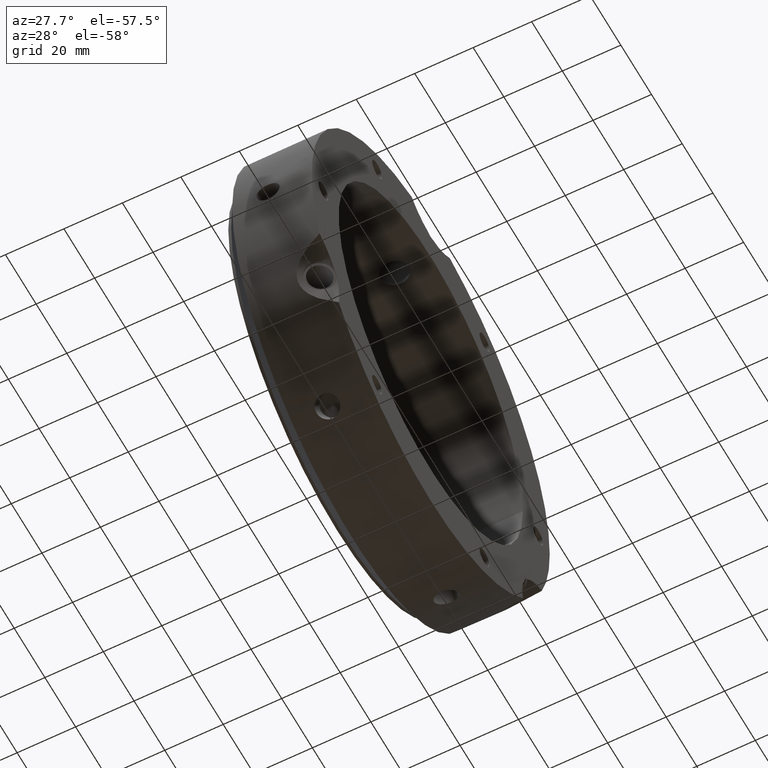
[diagram: clean part render]
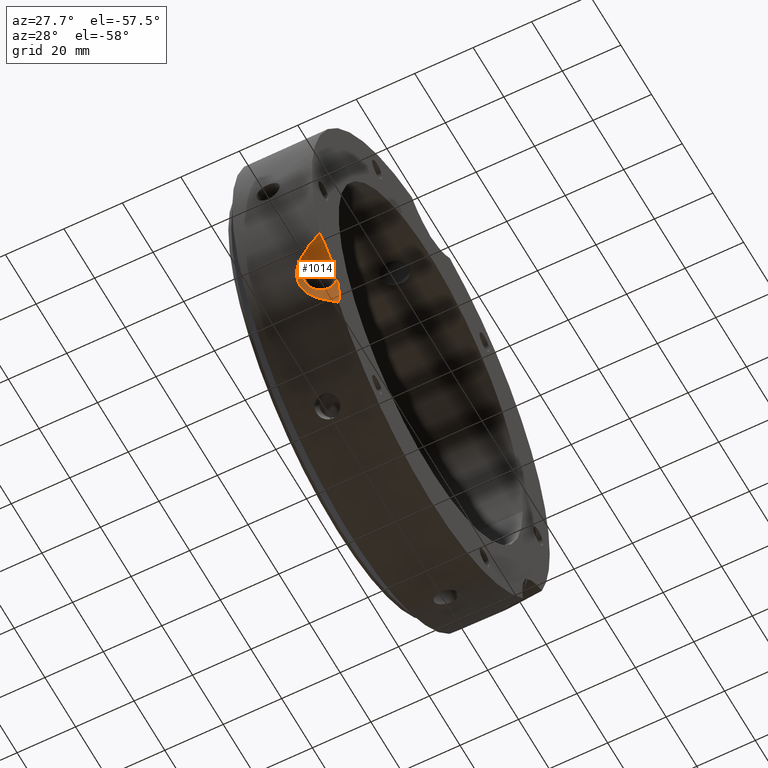
[diagram: same view with one face highlighted and labeled with its STEP entity id]
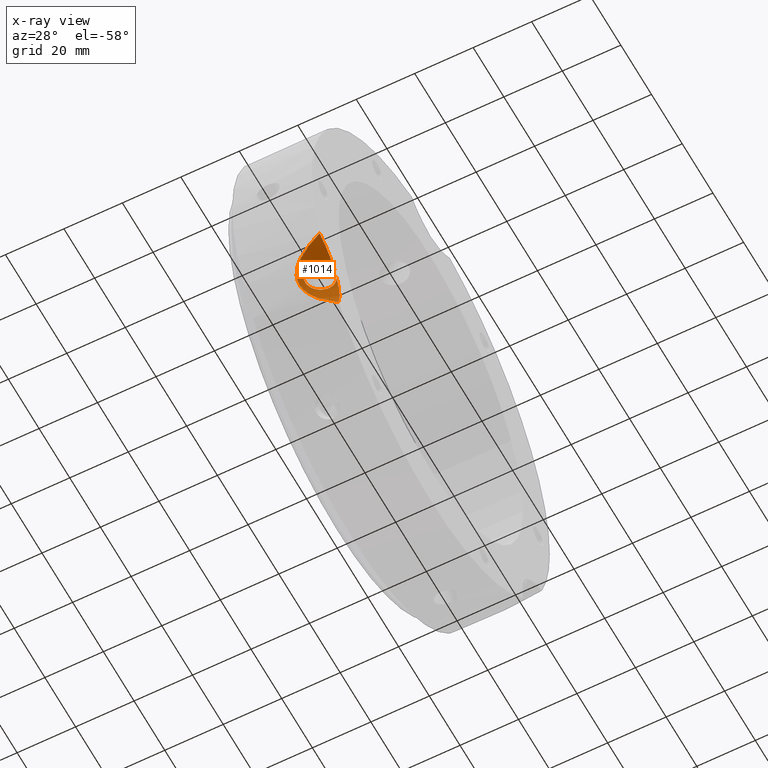
[diagram: x-ray of the same camera — body ghosted, the highlighted face saturated]
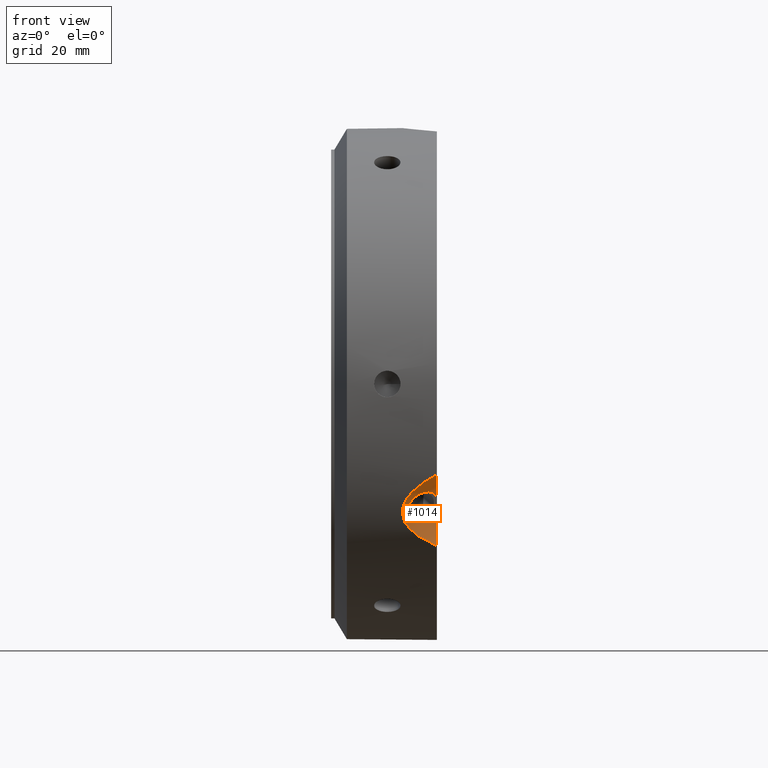
[diagram: same view with one face highlighted and labeled with its STEP entity id]
A machine part, auxiliary view. The second image highlights one B-rep face of the part: STEP entity #1014.
The next image is the same camera in x-ray: the body ghosted, the highlighted face saturated — about 0% of this face is hidden behind the body in this view.
A second angle (front view) of the same face is appended — the face is thin or edge-on in the first view.
In plain terms, the highlighted cylindrical surface (partial cylindrical patch) has radius 20 mm, axis along (-0.866, -0.433, -0.25).
Its self-contained STEP definition (entity closure, byte-faithful):
#926=CARTESIAN_POINT('',(35.321507575751163,-80.260062582711797,-46.338168737304841));
#927=DIRECTION('',(-0.866025403784439,-0.43301270189222,-0.25));
#928=DIRECTION('',(-0.5,0.75,0.433012701892219));
#929=AXIS2_PLACEMENT_3D('',#926,#927,#928);
#930=CYLINDRICAL_SURFACE('',#929,19.999999999999993);
#931=CARTESIAN_POINT('',(31.999999999986546,-61.307838288133098,-36.911218481351312));
#932=VERTEX_POINT('',#931);
#933=CARTESIAN_POINT('',(31.999999999999986,-60.036137161842049,-49.009307633188286));
#934=VERTEX_POINT('',#933);
#935=CARTESIAN_POINT('',(31.999999999999986,-81.920816370587374,-47.297005383792495));
#936=DIRECTION('',(-1.0,4.163336E-017,2.403703E-017));
#937=DIRECTION('',(4.807407E-017,0.866025403784439,0.5));
#938=AXIS2_PLACEMENT_3D('',#935,#936,#937);
#939=ELLIPSE('',#938,23.094010767585022,19.999999999999996);
#940=EDGE_CURVE('',#932,#934,#939,.T.);
#941=ORIENTED_EDGE('',*,*,#940,.F.);
#942=CARTESIAN_POINT('',(31.999999999986546,-62.619972033554482,-34.638536167955834));
#943=VERTEX_POINT('',#942);
#944=CARTESIAN_POINT('',(31.999999999973099,-62.61997203355449,-34.638536167955827));
#945=CARTESIAN_POINT('',(31.956828105331255,-62.765101034735984,-34.470173276576254));
#946=CARTESIAN_POINT('',(31.902480986098315,-62.917889267484767,-34.309421803607918));
#947=CARTESIAN_POINT('',(31.642526828475642,-63.548824474554849,-33.706780812144579));
#948=CARTESIAN_POINT('',(31.346785840236741,-64.070063985204527,-33.347704365024498));
#949=CARTESIAN_POINT('',(30.647987870152605,-65.036096284682912,-32.863427843409269));
#950=CARTESIAN_POINT('',(30.197428175803203,-65.546228834168474,-32.705310306142728));
#951=CARTESIAN_POINT('',(29.173188518736382,-66.445343849377821,-32.622434933608766));
#952=CARTESIAN_POINT('',(28.598275419944503,-66.832857600374666,-32.696995580554024));
#953=CARTESIAN_POINT('',(27.483719890402476,-67.390135365145696,-33.018740048057964));
#954=CARTESIAN_POINT('',(26.873342320570277,-67.595266948460861,-33.286343344411726));
#955=CARTESIAN_POINT('',(25.72277231961111,-67.78355676226451,-33.997032187694437));
#956=CARTESIAN_POINT('',(25.183359962350586,-67.768410238583925,-34.440930040204599));
#957=CARTESIAN_POINT('',(24.319134637787307,-67.583889586429237,-35.376412521776977));
#958=CARTESIAN_POINT('',(23.935819173233924,-67.402178302175713,-35.931515681804356));
#959=CARTESIAN_POINT('',(23.422611882902132,-66.907540364624467,-37.095926189030962));
#960=CARTESIAN_POINT('',(23.293678625993071,-66.595672710847367,-37.706105278452789));
#961=CARTESIAN_POINT('',(23.293678625993071,-65.952281404334329,-38.820491710481491));
#962=CARTESIAN_POINT('',(23.422611882902132,-65.579784638925517,-39.395666565982012));
#963=CARTESIAN_POINT('',(23.935819173233924,-64.818694528009374,-40.406240839190239));
#964=CARTESIAN_POINT('',(24.319134637787307,-64.428816731831418,-40.841159007521782));
#965=CARTESIAN_POINT('',(25.183359962350586,-63.710925464071771,-41.468699820596811));
#966=CARTESIAN_POINT('',(25.722772319611103,-63.334071908952907,-41.703766021138279));
#967=CARTESIAN_POINT('',(26.873342320570274,-62.624452409582084,-41.896046680751837));
#968=CARTESIAN_POINT('',(27.483719890402476,-62.29013536514568,-41.852199166659261));
#969=CARTESIAN_POINT('',(28.040997655173491,-62.011496482760165,-41.691326932907288));
#970=CARTESIAN_POINT('',(28.598275419944503,-61.732857600374665,-41.530454699155328));
#971=CARTESIAN_POINT('',(29.173188518736378,-61.474529310499037,-41.232138269948877));
#972=CARTESIAN_POINT('',(30.197428175803203,-61.096743980856871,-40.412044139586584));
#973=CARTESIAN_POINT('',(30.647987870152612,-60.978611510170751,-39.891197623801482));
#974=CARTESIAN_POINT('',(31.346785840236734,-60.914991130606701,-38.812450850769295));
#975=CARTESIAN_POINT('',(31.642526828475642,-60.965340700388523,-38.181505969530456));
#976=CARTESIAN_POINT('',(31.902480986098311,-61.17177550482257,-37.333779556334093));
#977=CARTESIAN_POINT('',(31.956828105331265,-61.234596247734522,-37.121085328890146));
#978=CARTESIAN_POINT('',(31.999999999973106,-61.307838288133098,-36.911218481351305));
#979=B_SPLINE_CURVE_WITH_KNOTS('',3,(#944,#945,#946,#947,#948,#949,#950,#951,#952,#953,#954,#955,#956,#957,#958,#959,#960,#961,#962,#963,#964,#965,#966,#967,#968,#969,#970,#971,#972,#973,#974,#975,#976,#977,#978),.UNSPECIFIED.,.F.,.U.,(4,2,2,2,2,2,2,2,2,2,2,2,3,2,2,2,4),(0.900739395248417,0.965145536866461,1.158162928820372,1.351209609322735,1.544256289825098,1.737302970327461,1.930349650829824,2.123367042783735,2.316384434737647,2.509401826691558,2.70241921864547,2.895465899147832,3.088512579650196,3.281559260152558,3.474605940654922,3.667623332608833,3.732029474226879),.UNSPECIFIED.);
#980=EDGE_CURVE('',#943,#932,#979,.T.);
#981=ORIENTED_EDGE('',*,*,#980,.F.);
#982=CARTESIAN_POINT('',(31.999999999999986,-72.461374013148713,-27.488166110648017));
#983=VERTEX_POINT('',#982);
#984=CARTESIAN_POINT('',(31.999999999999986,-81.920816370587374,-47.297005383792495));
#985=DIRECTION('',(-1.0,4.163336E-017,2.403703E-017));
#986=DIRECTION('',(4.807407E-017,0.866025403784439,0.5));
#987=AXIS2_PLACEMENT_3D('',#984,#985,#986);
#988=ELLIPSE('',#987,23.094010767585022,19.999999999999996);
#989=EDGE_CURVE('',#983,#943,#988,.T.);
#990=ORIENTED_EDGE('',*,*,#989,.F.);
#991=CARTESIAN_POINT('',(31.999999999999979,-60.036137161842042,-49.009307633188293));
#992=CARTESIAN_POINT('',(30.661766507833633,-60.495358786102585,-48.446763623627135));
#993=CARTESIAN_POINT('',(29.385024561125483,-60.984999110865118,-47.831193283468387));
#994=CARTESIAN_POINT('',(26.54064038613981,-62.237356359633424,-46.197328911781817));
#995=CARTESIAN_POINT('',(24.866309150357182,-63.120413474343835,-45.000049895503409));
#996=CARTESIAN_POINT('',(23.012776425478378,-64.567027522797886,-42.872884835499541));
#997=CARTESIAN_POINT('',(22.503289165994676,-65.069687640134035,-42.10821139086611));
#998=CARTESIAN_POINT('',(21.800513551717259,-66.089552609676787,-40.48872376469766));
#999=CARTESIAN_POINT('',(21.60769515458675,-66.606760113617355,-39.633707355662573));
#1000=CARTESIAN_POINT('',(21.60769515458675,-67.627177472970658,-37.866292644337406));
#1001=CARTESIAN_POINT('',(21.800513551717287,-68.109039651877296,-36.990869602379377));
#1002=CARTESIAN_POINT('',(22.503289165994701,-69.001624592482344,-35.297896817241288));
#1003=CARTESIAN_POINT('',(23.012776425478361,-69.412521162466192,-34.480243663842181));
#1004=CARTESIAN_POINT('',(24.866309150357164,-70.531393118245148,-32.1638566184076));
#1005=CARTESIAN_POINT('',(26.540640386139778,-71.126738604405091,-30.80046721593661));
#1006=CARTESIAN_POINT('',(29.385024561125455,-71.91552803223982,-28.898961838046382));
#1007=CARTESIAN_POINT('',(30.661766507833633,-72.203807422252254,-28.167135708005379));
#1008=CARTESIAN_POINT('',(31.999999999999993,-72.461374013148699,-27.48816611064801));
#1009=B_SPLINE_CURVE_WITH_KNOTS('',3,(#991,#992,#993,#994,#995,#996,#997,#998,#999,#1000,#1001,#1002,#1003,#1004,#1005,#1006,#1007,#1008),.UNSPECIFIED.,.F.,.U.,(4,2,2,2,2,2,2,2,4),(2.333064658629881,2.774170285325842,3.386420700937818,3.692545908743806,3.998671116549795,4.304796324355783,4.61092153216177,5.223171947773745,5.664277574469709),.UNSPECIFIED.);
#1010=EDGE_CURVE('',#934,#983,#1009,.T.);
#1011=ORIENTED_EDGE('',*,*,#1010,.F.);
#1012=EDGE_LOOP('',(#941,#981,#990,#1011));
#1013=FACE_OUTER_BOUND('',#1012,.T.);
#1014=ADVANCED_FACE('',(#1013),#930,.F.);